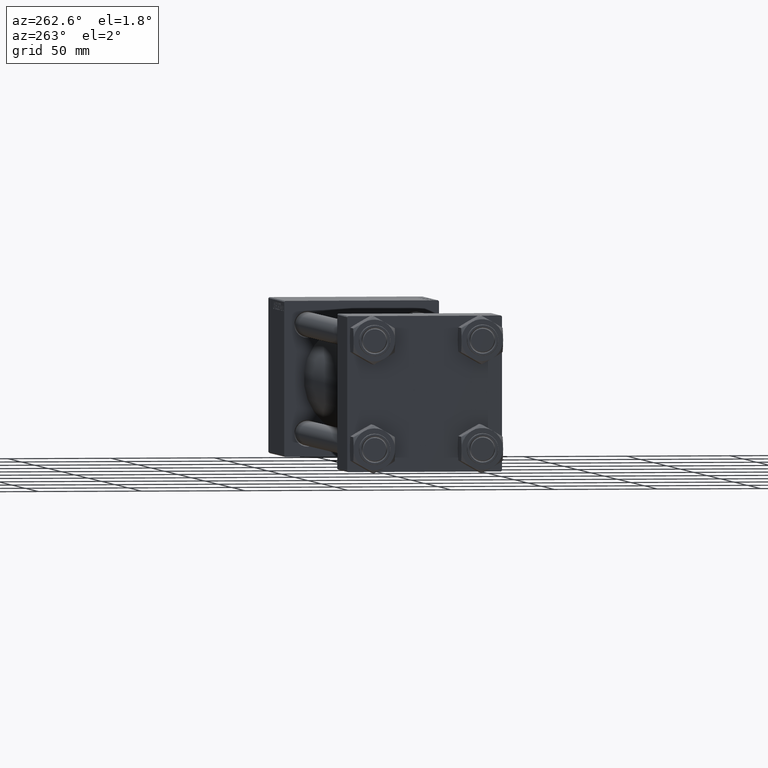
[diagram: clean part render]
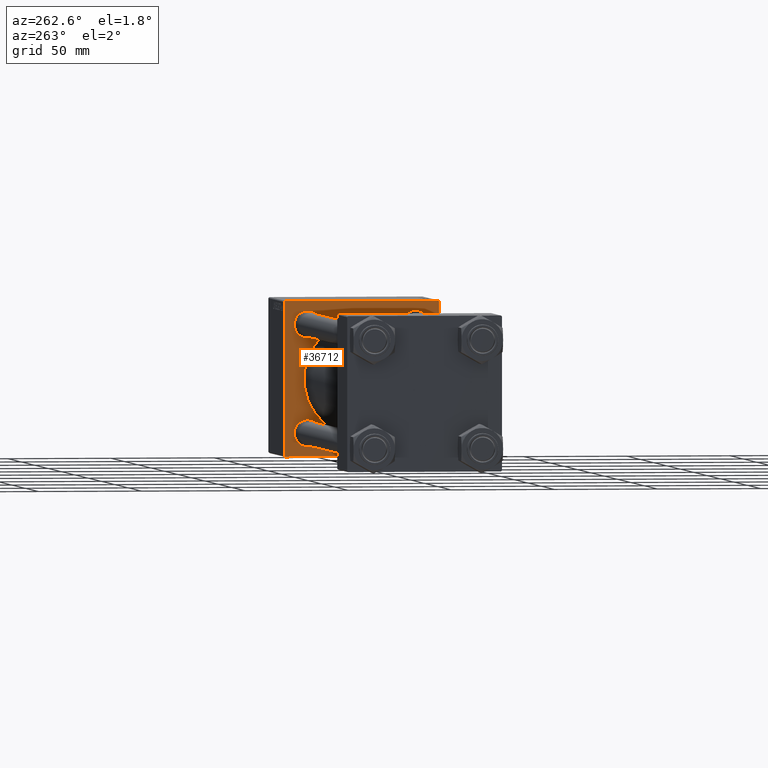
[diagram: same view with one face highlighted and labeled with its STEP entity id]
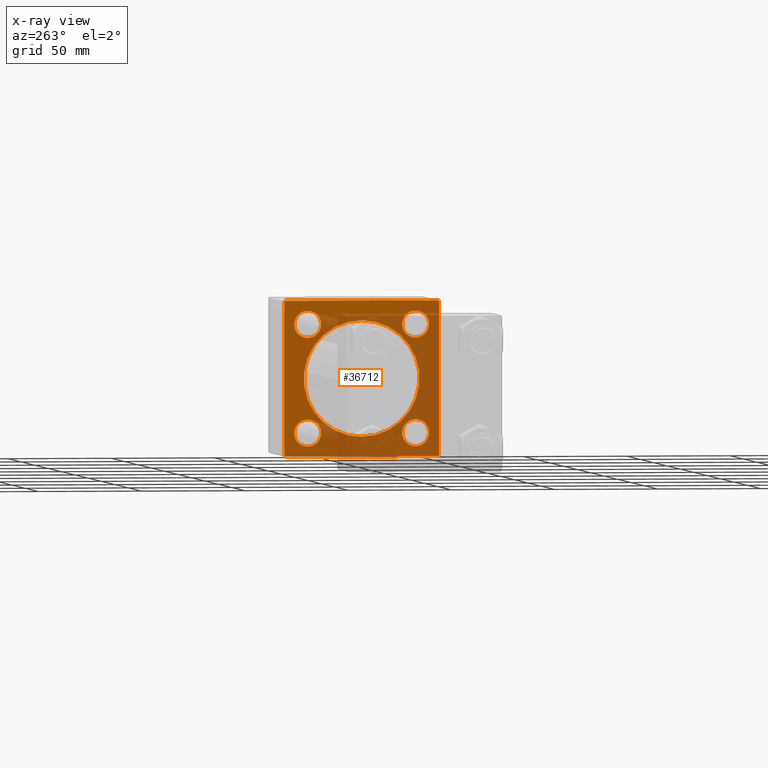
[diagram: x-ray of the same camera — body ghosted, the highlighted face saturated]
A machine part, auxiliary view. The second image highlights one B-rep face of the part: STEP entity #36712.
The next image is the same camera in x-ray: the body ghosted, the highlighted face saturated — about 55% of this face is hidden behind the body in this view.
In plain terms, the highlighted planar face has unit normal (-1, 0, 0).
Its self-contained STEP definition (entity closure, byte-faithful):
#33 = ORIENTED_EDGE ( 'NONE', *, *, #27919, .T. ) ;
#237 = CARTESIAN_POINT ( 'NONE',  ( 235.0000000000000284, -26.14999999999999147, -26.15000000000000924 ) ) ;
#407 = VERTEX_POINT ( 'NONE', #33379 ) ;
#460 = DIRECTION ( 'NONE',  ( 1.000000000000000000, 0.000000000000000000, 0.000000000000000000 ) ) ;
#852 = DIRECTION ( 'NONE',  ( 0.000000000000000000, 0.000000000000000000, 1.000000000000000000 ) ) ;
#1098 = CARTESIAN_POINT ( 'NONE',  ( 235.0000000000000284, 26.14999999999999858, 26.15000000000000213 ) ) ;
#1213 = ORIENTED_EDGE ( 'NONE', *, *, #20688, .T. ) ;
#1233 = CARTESIAN_POINT ( 'NONE',  ( 235.0000000000000284, -26.14999999999999147, -32.65000000000002700 ) ) ;
#1279 = VECTOR ( 'NONE', #1692, 1000.000000000000000 ) ;
#1690 = EDGE_CURVE ( 'NONE', #43926, #2745, #19166, .T. ) ;
#1692 = DIRECTION ( 'NONE',  ( 0.000000000000000000, -1.000000000000000000, -1.850371707708594316E-16 ) ) ;
#1707 = ORIENTED_EDGE ( 'NONE', *, *, #12971, .F. ) ;
#2025 = AXIS2_PLACEMENT_3D ( 'NONE', #25578, #2649, #41122 ) ;
#2438 = EDGE_CURVE ( 'NONE', #33623, #31271, #35717, .T. ) ;
#2513 = CARTESIAN_POINT ( 'NONE',  ( 235.0000000000000284, -2.602085213965210642E-15, 0.000000000000000000 ) ) ;
#2649 = DIRECTION ( 'NONE',  ( 1.000000000000000000, 0.000000000000000000, -0.000000000000000000 ) ) ;
#2745 = VERTEX_POINT ( 'NONE', #1233 ) ;
#2920 = FACE_BOUND ( 'NONE', #39256, .T. ) ;
#3043 = LINE ( 'NONE', #22419, #31240 ) ;
#3570 = EDGE_LOOP ( 'NONE', ( #31834, #28227, #1707, #26478, #42609, #42872, #40270, #14009 ) ) ;
#4410 = DIRECTION ( 'NONE',  ( 0.000000000000000000, 0.000000000000000000, 1.000000000000000000 ) ) ;
#4434 = AXIS2_PLACEMENT_3D ( 'NONE', #2513, #18081, #33605 ) ;
#4470 = AXIS2_PLACEMENT_3D ( 'NONE', #24745, #5373, #40278 ) ;
#4906 = EDGE_CURVE ( 'NONE', #40343, #28022, #29822, .T. ) ;
#5004 = DIRECTION ( 'NONE',  ( 0.000000000000000000, 0.000000000000000000, -1.000000000000000000 ) ) ;
#5128 = VERTEX_POINT ( 'NONE', #35302 ) ;
#5172 = LINE ( 'NONE', #28610, #34335 ) ;
#5364 = DIRECTION ( 'NONE',  ( -0.000000000000000000, -0.7071067811865230368, -0.7071067811865721087 ) ) ;
#5373 = DIRECTION ( 'NONE',  ( 1.000000000000000000, 0.000000000000000000, -0.000000000000000000 ) ) ;
#5422 = DIRECTION ( 'NONE',  ( 0.000000000000000000, -1.000000000000000000, 0.000000000000000000 ) ) ;
#6019 = DIRECTION ( 'NONE',  ( 0.000000000000000000, -0.7071067811865474617, 0.7071067811865474617 ) ) ;
#7484 = AXIS2_PLACEMENT_3D ( 'NONE', #36573, #22071, #9815 ) ;
#7673 = CARTESIAN_POINT ( 'NONE',  ( 235.0000000000000284, -37.50000000000000000, 37.49999999999997868 ) ) ;
#7894 = DIRECTION ( 'NONE',  ( 0.000000000000000000, 0.000000000000000000, 1.000000000000000000 ) ) ;
#7986 = EDGE_CURVE ( 'NONE', #35586, #45597, #49041, .T. ) ;
#8177 = AXIS2_PLACEMENT_3D ( 'NONE', #40375, #13365, #9048 ) ;
#8335 = CARTESIAN_POINT ( 'NONE',  ( 235.0000000000000284, 26.14999999999999858, -32.65000000000001990 ) ) ;
#8741 = DIRECTION ( 'NONE',  ( -1.000000000000000000, -0.000000000000000000, 0.000000000000000000 ) ) ;
#9048 = DIRECTION ( 'NONE',  ( 0.000000000000000000, 0.000000000000000000, 1.000000000000000000 ) ) ;
#9815 = DIRECTION ( 'NONE',  ( 0.000000000000000000, 0.000000000000000000, 1.000000000000000000 ) ) ;
#9870 = DIRECTION ( 'NONE',  ( 1.000000000000000000, 0.000000000000000000, -0.000000000000000000 ) ) ;
#11081 = CARTESIAN_POINT ( 'NONE',  ( 235.0000000000000284, 26.14999999999999858, -26.15000000000000213 ) ) ;
#11394 = LINE ( 'NONE', #35574, #49740 ) ;
#11740 = DIRECTION ( 'NONE',  ( 0.000000000000000000, -9.251858538542972814E-17, -1.000000000000000000 ) ) ;
#12971 = EDGE_CURVE ( 'NONE', #13844, #45597, #20154, .T. ) ;
#13365 = DIRECTION ( 'NONE',  ( 1.000000000000000000, 0.000000000000000000, -0.000000000000000000 ) ) ;
#13844 = VERTEX_POINT ( 'NONE', #32965 ) ;
#13956 = CARTESIAN_POINT ( 'NONE',  ( 235.0000000000000284, -26.14999999999999147, 26.15000000000000924 ) ) ;
#14009 = ORIENTED_EDGE ( 'NONE', *, *, #22074, .T. ) ;
#14018 = CARTESIAN_POINT ( 'NONE',  ( 235.0000000000000284, 37.25000000000127898, -37.24999999999869260 ) ) ;
#14023 = ORIENTED_EDGE ( 'NONE', *, *, #1690, .T. ) ;
#14255 = VERTEX_POINT ( 'NONE', #44857 ) ;
#14634 = VERTEX_POINT ( 'NONE', #38444 ) ;
#15123 = EDGE_CURVE ( 'NONE', #45812, #5128, #37471, .T. ) ;
#15571 = CARTESIAN_POINT ( 'NONE',  ( 235.0000000000000284, -26.14999999999999147, 32.65000000000003411 ) ) ;
#15810 = VERTEX_POINT ( 'NONE', #33555 ) ;
#16701 = AXIS2_PLACEMENT_3D ( 'NONE', #13956, #9870, #41222 ) ;
#17340 = LINE ( 'NONE', #14018, #48914 ) ;
#17499 = CIRCLE ( 'NONE', #2025, 6.500000000000015987 ) ;
#18027 = AXIS2_PLACEMENT_3D ( 'NONE', #1098, #47185, #39819 ) ;
#18081 = DIRECTION ( 'NONE',  ( 1.000000000000000000, 0.000000000000000000, 0.000000000000000000 ) ) ;
#18224 = EDGE_CURVE ( 'NONE', #407, #35595, #46518, .T. ) ;
#18484 = FACE_BOUND ( 'NONE', #47545, .T. ) ;
#18661 = ORIENTED_EDGE ( 'NONE', *, *, #18224, .T. ) ;
#18892 = ORIENTED_EDGE ( 'NONE', *, *, #23364, .T. ) ;
#19166 = CIRCLE ( 'NONE', #4470, 6.500000000000015987 ) ;
#20154 = LINE ( 'NONE', #7673, #29243 ) ;
#20688 = EDGE_CURVE ( 'NONE', #5128, #45812, #28588, .T. ) ;
#20760 = CARTESIAN_POINT ( 'NONE',  ( 235.0000000000000284, 36.99999999999997158, 37.49999999999999289 ) ) ;
#21448 = VERTEX_POINT ( 'NONE', #45005 ) ;
#21583 = CARTESIAN_POINT ( 'NONE',  ( 235.0000000000000284, -37.24999999999997158, -37.24999999999997158 ) ) ;
#22071 = DIRECTION ( 'NONE',  ( 1.000000000000000000, 0.000000000000000000, -0.000000000000000000 ) ) ;
#22074 = EDGE_CURVE ( 'NONE', #31271, #14255, #17340, .T. ) ;
#22419 = CARTESIAN_POINT ( 'NONE',  ( 235.0000000000000284, -37.24999999999995737, 37.24999999999995737 ) ) ;
#23364 = EDGE_CURVE ( 'NONE', #2745, #43926, #29463, .T. ) ;
#23527 = ORIENTED_EDGE ( 'NONE', *, *, #33562, .T. ) ;
#24531 = CARTESIAN_POINT ( 'NONE',  ( 235.0000000000000284, 0.000000000000000000, 0.000000000000000000 ) ) ;
#24745 = CARTESIAN_POINT ( 'NONE',  ( 235.0000000000000284, -26.14999999999999147, -26.15000000000000924 ) ) ;
#25578 = CARTESIAN_POINT ( 'NONE',  ( 235.0000000000000284, 26.14999999999999858, -26.15000000000000213 ) ) ;
#25762 = CARTESIAN_POINT ( 'NONE',  ( 235.0000000000000284, 37.50000000000000000, -36.99999999999996447 ) ) ;
#26011 = LINE ( 'NONE', #33915, #1279 ) ;
#26478 = ORIENTED_EDGE ( 'NONE', *, *, #46830, .T. ) ;
#26487 = DIRECTION ( 'NONE',  ( -0.000000000000000000, 0.7071067811865474617, 0.7071067811865474617 ) ) ;
#26621 = FACE_BOUND ( 'NONE', #47742, .T. ) ;
#27300 = CIRCLE ( 'NONE', #16701, 6.500000000000015987 ) ;
#27677 = DIRECTION ( 'NONE',  ( 0.000000000000000000, 0.7071067811865672237, -0.7071067811865279218 ) ) ;
#27919 = EDGE_CURVE ( 'NONE', #15810, #21448, #42675, .T. ) ;
#28022 = VERTEX_POINT ( 'NONE', #48263 ) ;
#28227 = ORIENTED_EDGE ( 'NONE', *, *, #7986, .T. ) ;
#28407 = ORIENTED_EDGE ( 'NONE', *, *, #33209, .T. ) ;
#28588 = CIRCLE ( 'NONE', #18027, 6.500000000000008882 ) ;
#28610 = CARTESIAN_POINT ( 'NONE',  ( 235.0000000000000284, 37.50000000000000000, -37.50000000000000000 ) ) ;
#28996 = CARTESIAN_POINT ( 'NONE',  ( 235.0000000000000284, 37.50000000000000000, 36.99999999999999289 ) ) ;
#29243 = VECTOR ( 'NONE', #11740, 1000.000000000000000 ) ;
#29463 = CIRCLE ( 'NONE', #40047, 6.500000000000015987 ) ;
#29822 = CIRCLE ( 'NONE', #36314, 6.500000000000015987 ) ;
#30083 = EDGE_LOOP ( 'NONE', ( #34590, #33 ) ) ;
#30292 = ORIENTED_EDGE ( 'NONE', *, *, #4906, .T. ) ;
#31240 = VECTOR ( 'NONE', #26487, 1000.000000000000114 ) ;
#31271 = VERTEX_POINT ( 'NONE', #25762 ) ;
#31656 = CARTESIAN_POINT ( 'NONE',  ( 235.0000000000000284, 37.50000000000000000, 37.49999999999999289 ) ) ;
#31657 = CARTESIAN_POINT ( 'NONE',  ( 235.0000000000000284, 26.14999999999999858, 32.65000000000001990 ) ) ;
#31834 = ORIENTED_EDGE ( 'NONE', *, *, #38926, .T. ) ;
#32734 = EDGE_CURVE ( 'NONE', #21448, #15810, #47648, .T. ) ;
#32965 = CARTESIAN_POINT ( 'NONE',  ( 235.0000000000000284, -37.50000000000000000, 36.99999999999992184 ) ) ;
#33209 = EDGE_CURVE ( 'NONE', #28022, #40343, #17499, .T. ) ;
#33379 = CARTESIAN_POINT ( 'NONE',  ( 235.0000000000000284, -26.14999999999999147, 19.64999999999999147 ) ) ;
#33555 = CARTESIAN_POINT ( 'NONE',  ( 235.0000000000000284, 8.269258236473784371E-16, -28.00000000000000000 ) ) ;
#33562 = EDGE_CURVE ( 'NONE', #35595, #407, #27300, .T. ) ;
#33605 = DIRECTION ( 'NONE',  ( 0.000000000000000000, 0.000000000000000000, -1.000000000000000000 ) ) ;
#33623 = VERTEX_POINT ( 'NONE', #28996 ) ;
#33861 = EDGE_LOOP ( 'NONE', ( #14023, #18892 ) ) ;
#33915 = CARTESIAN_POINT ( 'NONE',  ( 235.0000000000000284, 37.50000000000000000, 37.49999999999999289 ) ) ;
#34002 = FACE_BOUND ( 'NONE', #30083, .T. ) ;
#34335 = VECTOR ( 'NONE', #5422, 1000.000000000000000 ) ;
#34590 = ORIENTED_EDGE ( 'NONE', *, *, #32734, .T. ) ;
#34664 = EDGE_CURVE ( 'NONE', #49797, #14634, #26011, .T. ) ;
#35302 = CARTESIAN_POINT ( 'NONE',  ( 235.0000000000000284, 26.14999999999999858, 19.64999999999999147 ) ) ;
#35349 = CARTESIAN_POINT ( 'NONE',  ( 235.0000000000000284, -2.602085213965210642E-15, 0.000000000000000000 ) ) ;
#35574 = CARTESIAN_POINT ( 'NONE',  ( 235.0000000000000284, 37.24999999999894840, 37.25000000000101608 ) ) ;
#35586 = VERTEX_POINT ( 'NONE', #43791 ) ;
#35595 = VERTEX_POINT ( 'NONE', #15571 ) ;
#35717 = LINE ( 'NONE', #31656, #37895 ) ;
#35996 = DIRECTION ( 'NONE',  ( 1.000000000000000000, 0.000000000000000000, -0.000000000000000000 ) ) ;
#36314 = AXIS2_PLACEMENT_3D ( 'NONE', #11081, #35996, #852 ) ;
#36573 = CARTESIAN_POINT ( 'NONE',  ( 235.0000000000000284, -26.14999999999999147, 26.15000000000000924 ) ) ;
#36712 = ADVANCED_FACE ( 'NONE', ( #2920, #26621, #18484, #50006, #34002, #42160 ), #49499, .T. ) ;
#37471 = CIRCLE ( 'NONE', #8177, 6.500000000000008882 ) ;
#37895 = VECTOR ( 'NONE', #43848, 1000.000000000000000 ) ;
#38444 = CARTESIAN_POINT ( 'NONE',  ( 235.0000000000000284, -36.99999999999994316, 37.49999999999997868 ) ) ;
#38836 = VECTOR ( 'NONE', #6019, 1000.000000000000114 ) ;
#38926 = EDGE_CURVE ( 'NONE', #14255, #35586, #5172, .T. ) ;
#39256 = EDGE_LOOP ( 'NONE', ( #23527, #18661 ) ) ;
#39819 = DIRECTION ( 'NONE',  ( 0.000000000000000000, 0.000000000000000000, 1.000000000000000000 ) ) ;
#40047 = AXIS2_PLACEMENT_3D ( 'NONE', #237, #42789, #7894 ) ;
#40099 = CARTESIAN_POINT ( 'NONE',  ( 235.0000000000000284, -37.50000000000000711, -36.99999999999995026 ) ) ;
#40270 = ORIENTED_EDGE ( 'NONE', *, *, #2438, .T. ) ;
#40278 = DIRECTION ( 'NONE',  ( 0.000000000000000000, 0.000000000000000000, 1.000000000000000000 ) ) ;
#40343 = VERTEX_POINT ( 'NONE', #8335 ) ;
#40375 = CARTESIAN_POINT ( 'NONE',  ( 235.0000000000000284, 26.14999999999999858, 26.15000000000000213 ) ) ;
#41122 = DIRECTION ( 'NONE',  ( 0.000000000000000000, 0.000000000000000000, 1.000000000000000000 ) ) ;
#41203 = AXIS2_PLACEMENT_3D ( 'NONE', #24531, #8741, #4410 ) ;
#41222 = DIRECTION ( 'NONE',  ( 0.000000000000000000, 0.000000000000000000, 1.000000000000000000 ) ) ;
#42160 = FACE_OUTER_BOUND ( 'NONE', #3570, .T. ) ;
#42609 = ORIENTED_EDGE ( 'NONE', *, *, #34664, .F. ) ;
#42675 = CIRCLE ( 'NONE', #45075, 28.00000000000000000 ) ;
#42789 = DIRECTION ( 'NONE',  ( 1.000000000000000000, 0.000000000000000000, -0.000000000000000000 ) ) ;
#42872 = ORIENTED_EDGE ( 'NONE', *, *, #43267, .T. ) ;
#43267 = EDGE_CURVE ( 'NONE', #49797, #33623, #11394, .T. ) ;
#43791 = CARTESIAN_POINT ( 'NONE',  ( 235.0000000000000284, -36.99999999999995737, -37.50000000000000000 ) ) ;
#43848 = DIRECTION ( 'NONE',  ( 0.000000000000000000, 0.000000000000000000, -1.000000000000000000 ) ) ;
#43926 = VERTEX_POINT ( 'NONE', #47636 ) ;
#44857 = CARTESIAN_POINT ( 'NONE',  ( 235.0000000000000284, 37.00000000000000000, -37.50000000000000000 ) ) ;
#45005 = CARTESIAN_POINT ( 'NONE',  ( 235.0000000000000284, -2.602085213965210642E-15, 28.00000000000000000 ) ) ;
#45075 = AXIS2_PLACEMENT_3D ( 'NONE', #35349, #460, #5004 ) ;
#45120 = ORIENTED_EDGE ( 'NONE', *, *, #15123, .T. ) ;
#45597 = VERTEX_POINT ( 'NONE', #40099 ) ;
#45812 = VERTEX_POINT ( 'NONE', #31657 ) ;
#46518 = CIRCLE ( 'NONE', #7484, 6.500000000000015987 ) ;
#46830 = EDGE_CURVE ( 'NONE', #13844, #14634, #3043, .T. ) ;
#47185 = DIRECTION ( 'NONE',  ( 1.000000000000000000, 0.000000000000000000, -0.000000000000000000 ) ) ;
#47545 = EDGE_LOOP ( 'NONE', ( #28407, #30292 ) ) ;
#47636 = CARTESIAN_POINT ( 'NONE',  ( 235.0000000000000284, -26.14999999999999147, -19.64999999999999503 ) ) ;
#47648 = CIRCLE ( 'NONE', #4434, 28.00000000000000000 ) ;
#47742 = EDGE_LOOP ( 'NONE', ( #45120, #1213 ) ) ;
#48263 = CARTESIAN_POINT ( 'NONE',  ( 235.0000000000000284, 26.14999999999999858, -19.64999999999998792 ) ) ;
#48914 = VECTOR ( 'NONE', #5364, 1000.000000000000000 ) ;
#49041 = LINE ( 'NONE', #21583, #38836 ) ;
#49499 = PLANE ( 'NONE',  #41203 ) ;
#49740 = VECTOR ( 'NONE', #27677, 1000.000000000000000 ) ;
#49797 = VERTEX_POINT ( 'NONE', #20760 ) ;
#50006 = FACE_BOUND ( 'NONE', #33861, .T. ) ;